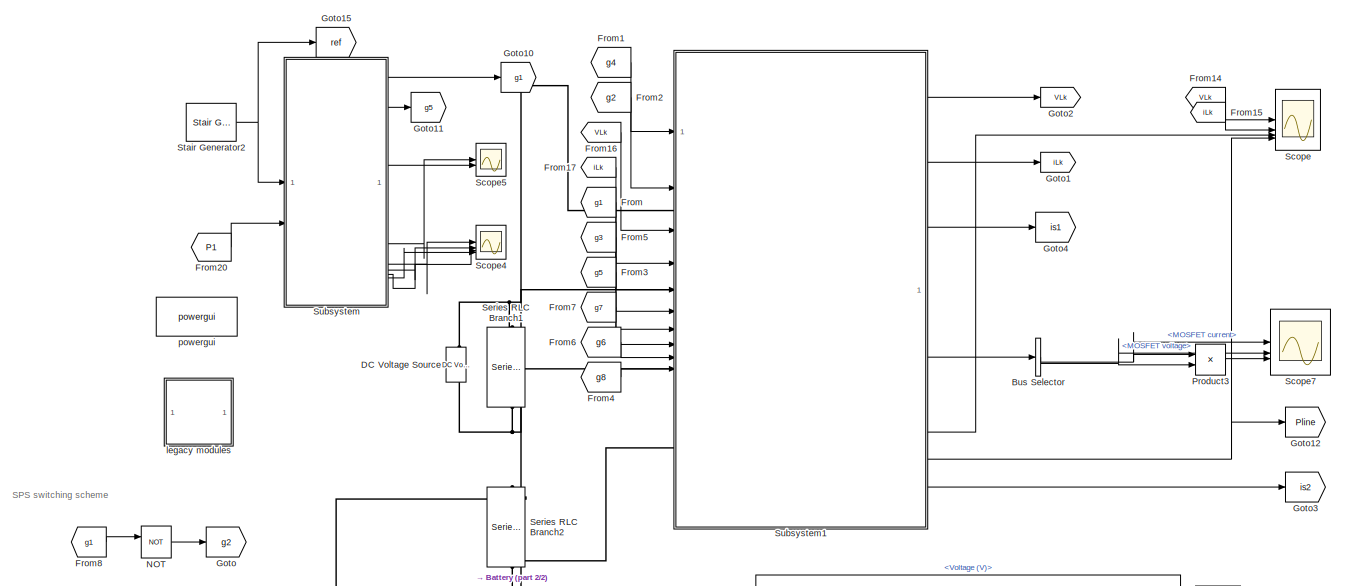
[diagram: root canvas - part 1/2, full width, top band]
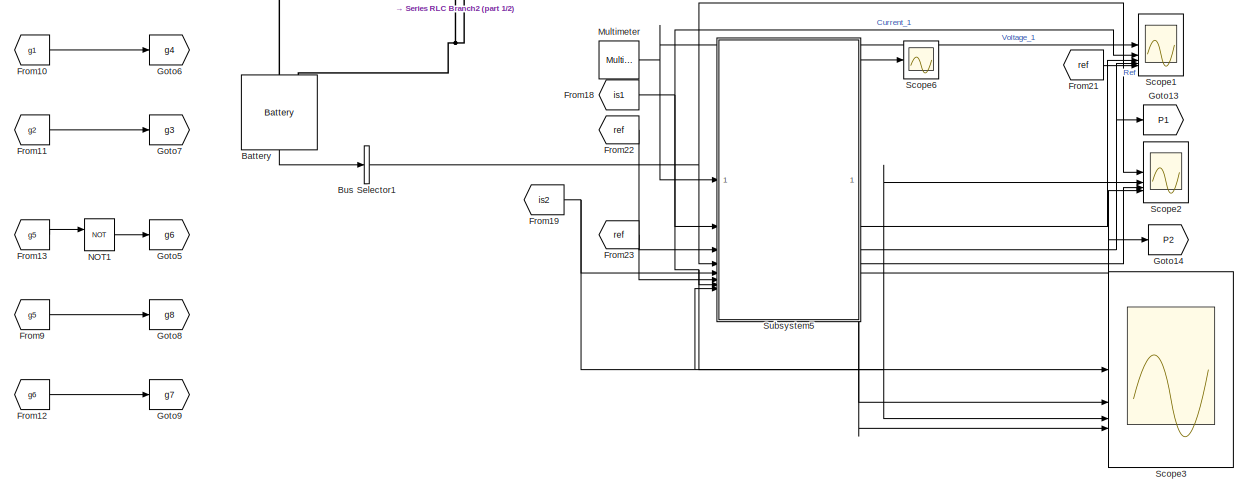
[diagram: root canvas - part 2/2, full width, bottom band]
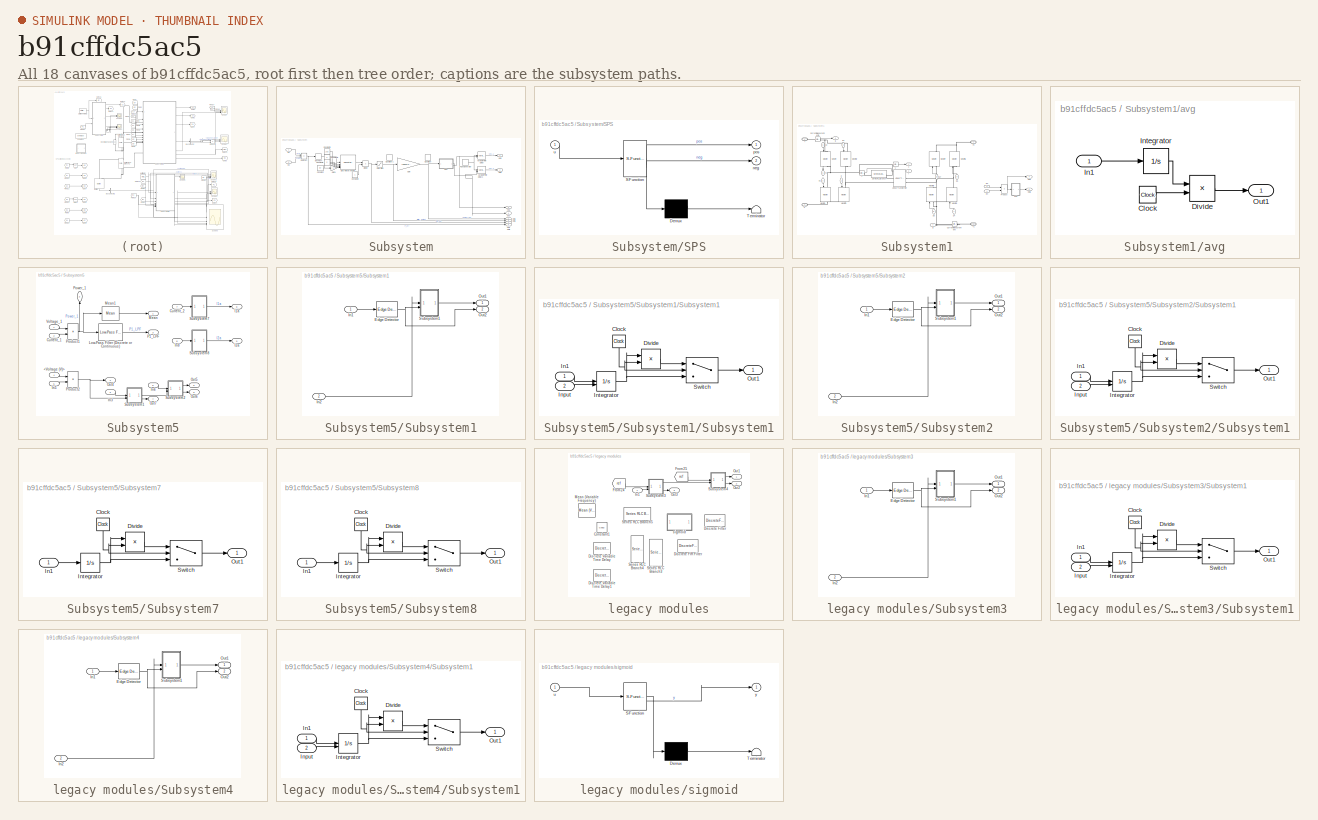
[diagram: thumbnail index - all 18 canvases of the model, root first then tree order]
MODEL slx_b91cffdc5ac5
KIND model
CONFIG AbsTol = auto
CONFIG EnableMultiTasking = off
CONFIG FixedStep = auto
CONFIG MaxStep = auto
CONFIG MinStep = auto
CONFIG RelTol = 1e-3
CONFIG SampleTimeConstraint = Unconstrained
CONFIG SolverName = VariableStepAuto
CONFIG StartTime = 0.0
CONFIG StopTime = 50e-2
BLOCK [Reference] Battery  REF=spsBatteryLib/Battery
  LibrarySourceBlock = sps_lib/Sources/Battery
  NameLocation = right
  SourceBlock = spsBatteryLib/Battery
  SourceType = Battery
BLOCK [BusSelector] Bus Selector
  OutputSignals = MOSFET current,MOSFET voltage
BLOCK [BusSelector] Bus Selector1
  OutputSignals = Voltage (V)
BLOCK [Reference] DC Voltage Source  REF=spsDCVoltageSourceLib/DC Voltage Source
  LibrarySourceBlock = sps_lib/Sources/DC Voltage Source
  SourceBlock = spsDCVoltageSourceLib/DC Voltage Source
  SourceType = DC Voltage Source
BLOCK [From] From
  GotoTag = g1
BLOCK [From] From1
  GotoTag = g4
BLOCK [From] From10
  GotoTag = g1
BLOCK [From] From11
  GotoTag = g2
BLOCK [From] From12
  GotoTag = g6
BLOCK [From] From13
  GotoTag = g5
BLOCK [From] From14
  GotoTag = VLk
BLOCK [From] From15
  GotoTag = iLk
BLOCK [From] From16
  GotoTag = VLk
BLOCK [From] From17
  GotoTag = iLk
BLOCK [From] From18
  GotoTag = is1
BLOCK [From] From19
  GotoTag = is2
BLOCK [From] From2
  GotoTag = g2
BLOCK [From] From20
  GotoTag = P1
BLOCK [From] From21
  GotoTag = ref
  NameLocation = top
BLOCK [From] From22
  GotoTag = ref
BLOCK [From] From23
  GotoTag = ref
BLOCK [From] From3
  GotoTag = g5
BLOCK [From] From4
  GotoTag = g8
BLOCK [From] From5
  GotoTag = g3
BLOCK [From] From6
  GotoTag = g6
BLOCK [From] From7
  GotoTag = g7
BLOCK [From] From8
  GotoTag = g1
BLOCK [From] From9
  GotoTag = g5
BLOCK [Goto] Goto
  GotoTag = g2
BLOCK [Goto] Goto1
  GotoTag = iLk
BLOCK [Goto] Goto10
  GotoTag = g1
BLOCK [Goto] Goto11
  GotoTag = g5
BLOCK [Goto] Goto12
  GotoTag = Pline
BLOCK [Goto] Goto13
  GotoTag = P1
  NameLocation = top
BLOCK [Goto] Goto14
  GotoTag = P2
BLOCK [Goto] Goto15
  GotoTag = ref
BLOCK [Goto] Goto2
  GotoTag = VLk
BLOCK [Goto] Goto3
  GotoTag = is2
BLOCK [Goto] Goto4
  GotoTag = is1
BLOCK [Goto] Goto5
  GotoTag = g6
BLOCK [Goto] Goto6
  GotoTag = g4
BLOCK [Goto] Goto7
  GotoTag = g3
BLOCK [Goto] Goto8
  GotoTag = g8
BLOCK [Goto] Goto9
  GotoTag = g7
BLOCK [Reference] Multimeter  REF=spsMultimeterLib/Multimeter
  LibrarySourceBlock = sps_lib/Sensors and Measurements/Multimeter
  SourceBlock = spsMultimeterLib/Multimeter
  SourceType = Multimeter
BLOCK [Logic] NOT
  AllPortsSameDT = off
  IconShape = distinctive
  Operator = NOT
  OutDataTypeStr = boolean
BLOCK [Logic] NOT1
  AllPortsSameDT = off
  IconShape = distinctive
  Operator = NOT
  OutDataTypeStr = boolean
BLOCK [Product] Product3
  NameLocation = top
BLOCK [Scope] Scope
  Floating = off
  NumInputPorts = 4
  ScopeSpecificationString = Simulink.scopes.TimeScopeBlockCfg('CurrentConfiguration', extmgr.ConfigurationSet(extmgr.Configuration('Core','General UI',true),extmgr.Configuration('Core','Source UI',true),extmgr.Configuration('Sources','WiredSimulink',true),extmgr.Configuration('Visuals','Time Domain',true,'SerializedDisplays',{struct('MinYLimReal','-380.0294','MaxYLimReal','368.88399','YLabelReal','','MinYLimMag',' 0.00000','...<+3384ch>
BLOCK [Scope] Scope1
  Floating = off
  NumInputPorts = 5
  ScopeSpecificationString = Simulink.scopes.TimeScopeBlockCfg('CurrentConfiguration', extmgr.ConfigurationSet(extmgr.Configuration('Core','General UI',true),extmgr.Configuration('Core','Source UI',true),extmgr.Configuration('Sources','WiredSimulink',true,'DataLoggingVariableName','ScopeData1'),extmgr.Configuration('Visuals','Time Domain',true,'SerializedDisplays',{struct('MinYLimReal','20.00000','MaxYLimReal','220.00000','YL...<+3509ch>
BLOCK [Scope] Scope2
  Floating = off
  NumInputPorts = 4
  ScopeSpecificationString = Simulink.scopes.TimeScopeBlockCfg('CurrentConfiguration', extmgr.ConfigurationSet(extmgr.Configuration('Core','General UI',true),extmgr.Configuration('Core','Source UI',true),extmgr.Configuration('Sources','WiredSimulink',true,'DataLoggingVariableName','ScopeData2'),extmgr.Configuration('Visuals','Time Domain',true,'SerializedDisplays',{struct('MinYLimReal','-4.87649','MaxYLimReal','125.16407','YL...<+3456ch>
BLOCK [Scope] Scope3
  Floating = off
  NumInputPorts = 4
  ScopeSpecificationString = Simulink.scopes.TimeScopeBlockCfg('CurrentConfiguration', extmgr.ConfigurationSet(extmgr.Configuration('Core','General UI',true),extmgr.Configuration('Core','Source UI',true),extmgr.Configuration('Sources','WiredSimulink',true,'DataLoggingVariableName','ScopeData1'),extmgr.Configuration('Visuals','Time Domain',true,'SerializedDisplays',{struct('MinYLimReal','-52.40124','MaxYLimReal','59.33411','YL...<+3498ch>
BLOCK [Scope] Scope4
  Floating = off
  NumInputPorts = 4
  ScopeSpecificationString = Simulink.scopes.TimeScopeBlockCfg('CurrentConfiguration', extmgr.ConfigurationSet(extmgr.Configuration('Core','General UI',true),extmgr.Configuration('Core','Source UI',true),extmgr.Configuration('Sources','WiredSimulink',true,'DataLoggingVariableName','ScopeData1'),extmgr.Configuration('Visuals','Time Domain',true,'SerializedDisplays',{struct('MinYLimReal','-0.000006','MaxYLimReal','0.000006','YL...<+3515ch>
BLOCK [Scope] Scope5
  Floating = off
  NumInputPorts = 2
  ScopeSpecificationString = Simulink.scopes.TimeScopeBlockCfg('CurrentConfiguration', extmgr.ConfigurationSet(extmgr.Configuration('Core','General UI',true),extmgr.Configuration('Core','Source UI',true),extmgr.Configuration('Sources','WiredSimulink',true,'DataLoggingVariableName','ScopeData1'),extmgr.Configuration('Visuals','Time Domain',true,'SerializedDisplays',{struct('MinYLimReal','-0.0000006','MaxYLimReal','0.0000056','...<+2093ch>
BLOCK [Scope] Scope6
  Floating = off
  NumInputPorts = 1
  ScopeSpecificationString = Simulink.scopes.TimeScopeBlockCfg('CurrentConfiguration', extmgr.ConfigurationSet(extmgr.Configuration('Core','General UI',true),extmgr.Configuration('Core','Source UI',true),extmgr.Configuration('Sources','WiredSimulink',true,'DataLoggingVariableName','ScopeData2'),extmgr.Configuration('Visuals','Time Domain',true,'SerializedDisplays',{struct('MinYLimReal','-3629.26667','MaxYLimReal','4138.18381'...<+1479ch>
BLOCK [Scope] Scope7
  Floating = off
  NameLocation = top
  NumInputPorts = 3
  ScopeSpecificationString = Simulink.scopes.TimeScopeBlockCfg('CurrentConfiguration', extmgr.ConfigurationSet(extmgr.Configuration('Core','General UI',true),extmgr.Configuration('Core','Source UI',true),extmgr.Configuration('Sources','WiredSimulink',true,'DataLoggingVariableName','ScopeData1'),extmgr.Configuration('Visuals','Time Domain',true,'SerializedDisplays',{struct('MinYLimReal','-56.54528','MaxYLimReal','71.19717','YL...<+2793ch>
BLOCK [Reference] Series RLC Branch1  REF=spsSeriesRLCBranchLib/Series RLC Branch
  LibrarySourceBlock = sps_lib/Passives/Series RLC Branch
  NameLocation = left
  SourceBlock = spsSeriesRLCBranchLib/Series RLC Branch
  SourceType = Series RLC Branch
BLOCK [Reference] Series RLC Branch2  REF=spsSeriesRLCBranchLib/Series RLC Branch
  LibrarySourceBlock = sps_lib/Passives/Series RLC Branch
  NameLocation = left
  SourceBlock = spsSeriesRLCBranchLib/Series RLC Branch
  SourceType = Series RLC Branch
BLOCK [Reference] Stair Generator2  REF=spsStairGeneratorLib/Stair
Generator
  LibrarySourceBlock = sps_lib/Sources/Signal Generator Sources/Stair\nGenerator
  SourceBlock = spsStairGeneratorLib/Stair\nGenerator
  SourceType = Stair Generator
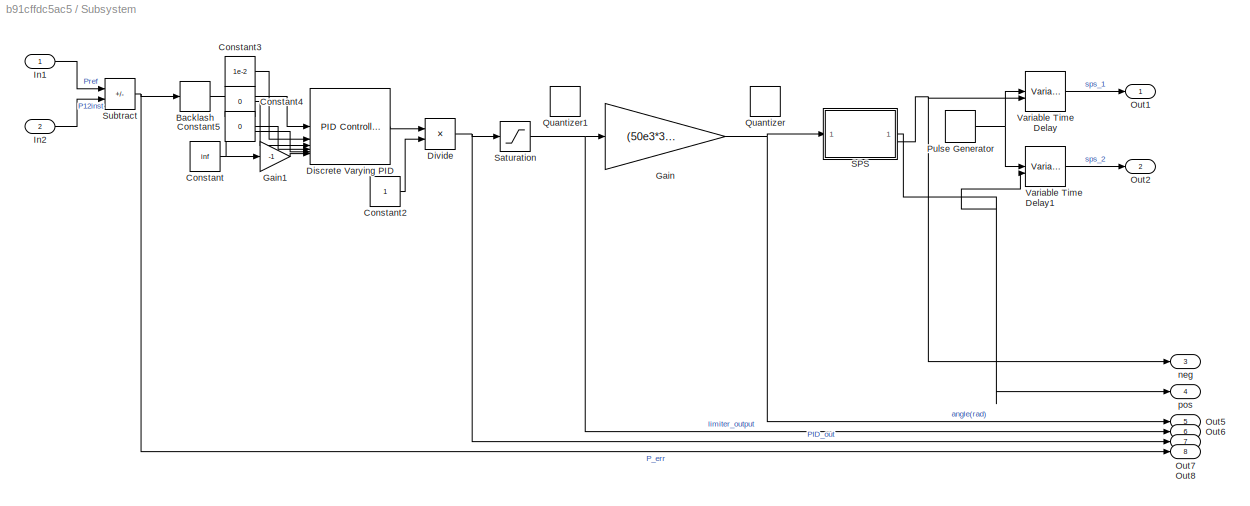
BLOCK [SubSystem] Subsystem
BLOCK [Backlash] Subsystem/Backlash
  BacklashWidth = 0
BLOCK [Constant] Subsystem/Constant
  Value = inf
BLOCK [Constant] Subsystem/Constant2
BLOCK [Constant] Subsystem/Constant3
  Value = 1e-2
BLOCK [Constant] Subsystem/Constant4
  Value = 0
BLOCK [Constant] Subsystem/Constant5
  Value = 0
BLOCK [Reference] Subsystem/Discrete Varying PID  REF=slpidlib/PID Controller
  LibrarySourceBlock = cstblocks/Linear Parameter Varying/Discrete Varying PID
  NameLocation = right
  SourceBlock = slpidlib/PID Controller
  SourceType = PID 1dof
BLOCK [Product] Subsystem/Divide
  Inputs = */
BLOCK [Gain] Subsystem/Gain
  Gain = (50e3*360/90)^-1
BLOCK [Gain] Subsystem/Gain1
  Gain = -1
BLOCK [Inport] Subsystem/In1
  IconDisplay = Port number and signal name
BLOCK [Inport] Subsystem/In2
  IconDisplay = Port number and signal name
  Port = 2
BLOCK [Outport] Subsystem/Out1
  IconDisplay = Port number and signal name
BLOCK [Outport] Subsystem/Out2
  IconDisplay = Port number and signal name
  Port = 2
BLOCK [Outport] Subsystem/Out5
  IconDisplay = Port number and signal name
  Port = 5
BLOCK [Outport] Subsystem/Out6
  IconDisplay = Port number and signal name
  Port = 6
BLOCK [Outport] Subsystem/Out7
  IconDisplay = Port number and signal name
  Port = 7
BLOCK [Outport] Subsystem/Out8
  IconDisplay = Port number and signal name
  Port = 8
BLOCK [DiscretePulseGenerator] Subsystem/Pulse Generator
  Period = 1/50e3
  PulseType = Time based
  PulseWidth = 50
BLOCK [Quantizer] Subsystem/Quantizer
  Commented = on
  QuantizationInterval = 1e-5
BLOCK [Quantizer] Subsystem/Quantizer1
  Commented = on
  QuantizationInterval = 1e-2
BLOCK [SubSystem] Subsystem/SPS
  ErrorFcn = Stateflow.Translate.translate
  LibrarySourceBlock = simulink/User-Defined\nFunctions/MATLAB Function
  PermitHierarchicalResolution = ExplicitOnly
  SFBlockType = MATLAB Function
  TreatAsAtomicUnit = on
BLOCK [Demux] Subsystem/SPS/ Demux 
  Outputs = 1
BLOCK [S-Function] Subsystem/SPS/ SFunction 
  EnableBusSupport = on
  FunctionName = sf_sfun
  PortCounts = [1 3]
  SFcnIsStateOwnerBlock = off
  SFunctionDeploymentMode = off
  Tag = Stateflow S-Function 1
BLOCK [Terminator] Subsystem/SPS/ Terminator 
BLOCK [Outport] Subsystem/SPS/neg
  Port = 2
BLOCK [Outport] Subsystem/SPS/pos
BLOCK [Inport] Subsystem/SPS/u
BLOCK [Saturate] Subsystem/Saturation
  LowerLimit = -1
  UpperLimit = 1
BLOCK [Sum] Subsystem/Subtract
  IconShape = rectangular
  Inputs = +-
BLOCK [VariableTransportDelay] Subsystem/Variable Time Delay
  MaximumDelay = 10
BLOCK [VariableTransportDelay] Subsystem/Variable Time Delay1
  MaximumDelay = 10
BLOCK [Outport] Subsystem/neg
  Port = 3
BLOCK [Outport] Subsystem/pos
  Port = 4
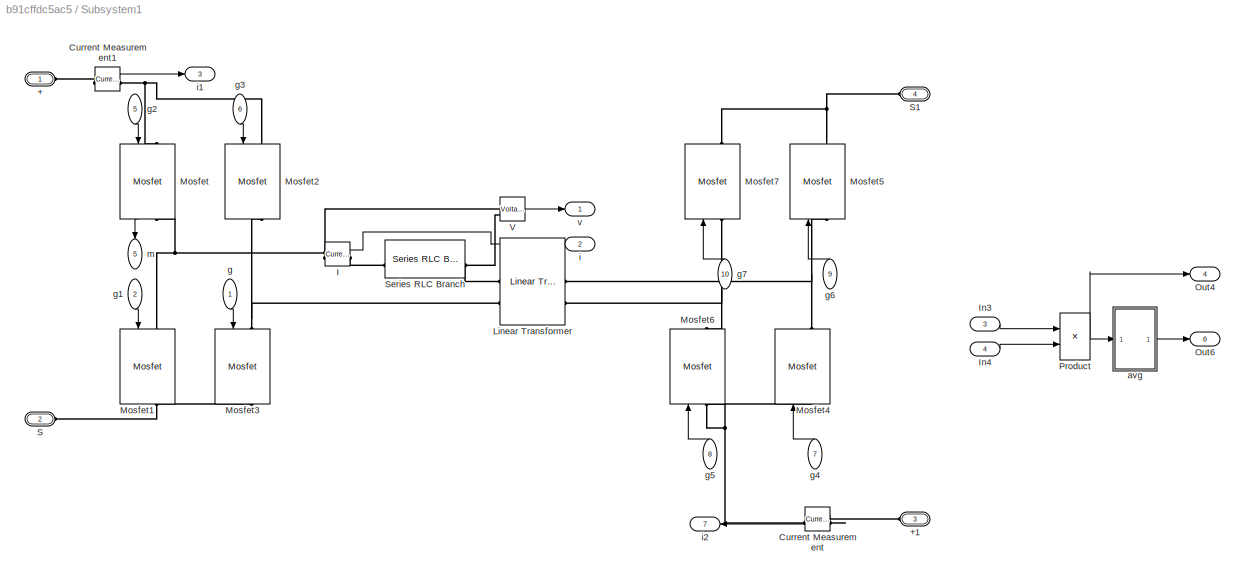
BLOCK [SubSystem] Subsystem1
BLOCK [PMIOPort] Subsystem1/+
  Side = Left
BLOCK [PMIOPort] Subsystem1/+1
  NameLocation = top
  Port = 3
  Side = Left
BLOCK [Reference] Subsystem1/Current Measurement  REF=spsCurrentMeasurementLib/Current Measurement
  LibrarySourceBlock = sps_lib/Sensors and Measurements/Current Measurement
  NameLocation = top
  SourceBlock = spsCurrentMeasurementLib/Current Measurement
  SourceType = Current Measurement
  UserDataPersistent = on
BLOCK [Reference] Subsystem1/Current Measurement1  REF=spsCurrentMeasurementLib/Current Measurement
  LibrarySourceBlock = sps_lib/Sensors and Measurements/Current Measurement
  SourceBlock = spsCurrentMeasurementLib/Current Measurement
  SourceType = Current Measurement
  UserDataPersistent = on
BLOCK [Reference] Subsystem1/I  REF=spsCurrentMeasurementLib/Current Measurement
  LibrarySourceBlock = sps_lib/Sensors and Measurements/Current Measurement
  SourceBlock = spsCurrentMeasurementLib/Current Measurement
  SourceType = Current Measurement
  UserDataPersistent = on
BLOCK [Inport] Subsystem1/In3
  Port = 3
BLOCK [Inport] Subsystem1/In4
  Port = 4
BLOCK [Reference] Subsystem1/Linear Transformer  REF=spsLinearTransformerLib/Linear Transformer
  LibrarySourceBlock = sps_lib/Power Grid Elements/Linear Transformer
  SourceBlock = spsLinearTransformerLib/Linear Transformer
  SourceType = Linear Transformer
BLOCK [Reference] Subsystem1/Mosfet  REF=spsMosfetLib/Mosfet
  LibrarySourceBlock = sps_lib/Power Electronics/Mosfet
  NameLocation = left
  SourceBlock = spsMosfetLib/Mosfet
  SourceType = Mosfet
BLOCK [Reference] Subsystem1/Mosfet1  REF=spsMosfetLib/Mosfet
  LibrarySourceBlock = sps_lib/Power Electronics/Mosfet
  NameLocation = left
  SourceBlock = spsMosfetLib/Mosfet
  SourceType = Mosfet
BLOCK [Reference] Subsystem1/Mosfet2  REF=spsMosfetLib/Mosfet
  LibrarySourceBlock = sps_lib/Power Electronics/Mosfet
  NameLocation = left
  SourceBlock = spsMosfetLib/Mosfet
  SourceType = Mosfet
BLOCK [Reference] Subsystem1/Mosfet3  REF=spsMosfetLib/Mosfet
  LibrarySourceBlock = sps_lib/Power Electronics/Mosfet
  NameLocation = left
  SourceBlock = spsMosfetLib/Mosfet
  SourceType = Mosfet
BLOCK [Reference] Subsystem1/Mosfet4  REF=spsMosfetLib/Mosfet
  LibrarySourceBlock = sps_lib/Power Electronics/Mosfet
  NameLocation = right
  SourceBlock = spsMosfetLib/Mosfet
  SourceType = Mosfet
BLOCK [Reference] Subsystem1/Mosfet5  REF=spsMosfetLib/Mosfet
  LibrarySourceBlock = sps_lib/Power Electronics/Mosfet
  NameLocation = right
  SourceBlock = spsMosfetLib/Mosfet
  SourceType = Mosfet
BLOCK [Reference] Subsystem1/Mosfet6  REF=spsMosfetLib/Mosfet
  LibrarySourceBlock = sps_lib/Power Electronics/Mosfet
  NameLocation = right
  SourceBlock = spsMosfetLib/Mosfet
  SourceType = Mosfet
BLOCK [Reference] Subsystem1/Mosfet7  REF=spsMosfetLib/Mosfet
  LibrarySourceBlock = sps_lib/Power Electronics/Mosfet
  NameLocation = right
  SourceBlock = spsMosfetLib/Mosfet
  SourceType = Mosfet
BLOCK [Outport] Subsystem1/Out4
  Port = 4
BLOCK [Outport] Subsystem1/Out6
  Port = 6
BLOCK [Product] Subsystem1/Product
BLOCK [PMIOPort] Subsystem1/S
  Port = 2
  Side = Left
BLOCK [PMIOPort] Subsystem1/S1
  NameLocation = top
  Port = 4
  Side = Left
BLOCK [Reference] Subsystem1/Series RLC Branch  REF=spsSeriesRLCBranchLib/Series RLC Branch
  LibrarySourceBlock = sps_lib/Passives/Series RLC Branch
  SourceBlock = spsSeriesRLCBranchLib/Series RLC Branch
  SourceType = Series RLC Branch
BLOCK [Reference] Subsystem1/V  REF=spsVoltageMeasurementLib/Voltage Measurement
  LibrarySourceBlock = sps_lib/Sensors and Measurements/Voltage Measurement
  SourceBlock = spsVoltageMeasurementLib/Voltage Measurement
  SourceType = Voltage Measurement
  UserDataPersistent = on
BLOCK [SubSystem] Subsystem1/avg
BLOCK [Clock] Subsystem1/avg/Clock
BLOCK [Product] Subsystem1/avg/Divide
  Inputs = */
BLOCK [Inport] Subsystem1/avg/In1
BLOCK [Integrator] Subsystem1/avg/Integrator
BLOCK [Outport] Subsystem1/avg/Out1
BLOCK [Inport] Subsystem1/g
  NameLocation = left
BLOCK [Inport] Subsystem1/g1
  NameLocation = left
  Port = 2
BLOCK [Inport] Subsystem1/g2
  NameLocation = left
  Port = 5
BLOCK [Inport] Subsystem1/g3
  NameLocation = left
  Port = 6
BLOCK [Inport] Subsystem1/g4
  NameLocation = right
  Port = 7
BLOCK [Inport] Subsystem1/g5
  NameLocation = right
  Port = 8
BLOCK [Inport] Subsystem1/g6
  NameLocation = right
  Port = 9
BLOCK [Inport] Subsystem1/g7
  NameLocation = right
  Port = 10
BLOCK [Outport] Subsystem1/i
  Port = 2
BLOCK [Outport] Subsystem1/i1
  Port = 3
BLOCK [Outport] Subsystem1/i2
  NameLocation = top
  Port = 7
BLOCK [Outport] Subsystem1/m
  NameLocation = right
  Port = 5
BLOCK [Outport] Subsystem1/v
BLOCK [SubSystem] Subsystem5
BLOCK [Inport] Subsystem5/<Voltage (V)>
  Port = 4
BLOCK [Inport] Subsystem5/Current_1
  Port = 2
BLOCK [Inport] Subsystem5/Current_2
  Port = 7
BLOCK [Outport] Subsystem5/I1a
  Port = 8
BLOCK [Outport] Subsystem5/I2a
  Port = 9
BLOCK [Inport] Subsystem5/In3
  Port = 3
BLOCK [Inport] Subsystem5/In5
  Port = 5
BLOCK [Inport] Subsystem5/In6
  Port = 6
BLOCK [Inport] Subsystem5/In8
  NameLocation = top
  Port = 8
BLOCK [Reference] Subsystem5/Low-Pass Filter (Discrete or Continuous)  REF=eeGeneralControl/Low-Pass Filter
(Discrete or Continuous)
  LibrarySourceBlock = ee_sl_lib/General Control/Low-Pass Filter\n(Discrete or Continuous)
  SourceBlock = eeGeneralControl/Low-Pass Filter\n(Discrete or Continuous)
  SourceType = Low-Pass Filter (Discrete or Continuous)
BLOCK [Outport] Subsystem5/Mean
BLOCK [Reference] Subsystem5/Mean1  REF=spsMeanLib/Mean
  LibrarySourceBlock = sps_lib/Sensors and Measurements/Mean
  SourceBlock = spsMeanLib/Mean
  SourceType = Mean
BLOCK [Outport] Subsystem5/Out4
  Port = 4
BLOCK [Outport] Subsystem5/Out5
  Port = 5
BLOCK [Outport] Subsystem5/Out6
  Port = 6
BLOCK [Outport] Subsystem5/Out7
  Port = 7
BLOCK [Outport] Subsystem5/P1_LPF
  Port = 3
BLOCK [Outport] Subsystem5/Power_1
  NameLocation = right
  Port = 2
BLOCK [Product] Subsystem5/Product1
BLOCK [Product] Subsystem5/Product2
BLOCK [SubSystem] Subsystem5/Subsystem1
BLOCK [Reference] Subsystem5/Subsystem1/Edge Detector  REF=spsEdgeDetectorLib/Edge Detector
  LibrarySourceBlock = sps_lib/Control/Edge Detector
  SourceBlock = spsEdgeDetectorLib/Edge Detector
  SourceType = Edge Detector
BLOCK [Inport] Subsystem5/Subsystem1/In1
BLOCK [Inport] Subsystem5/Subsystem1/In2
  Port = 2
BLOCK [Outport] Subsystem5/Subsystem1/Out1
BLOCK [Outport] Subsystem5/Subsystem1/Out2
  Port = 2
BLOCK [SubSystem] Subsystem5/Subsystem1/Subsystem1
BLOCK [Clock] Subsystem5/Subsystem1/Subsystem1/Clock
  NameLocation = left
BLOCK [Product] Subsystem5/Subsystem1/Subsystem1/Divide
  Inputs = */
  NameLocation = top
BLOCK [Inport] Subsystem5/Subsystem1/Subsystem1/In1
BLOCK [Inport] Subsystem5/Subsystem1/Subsystem1/Input
  Port = 2
BLOCK [Integrator] Subsystem5/Subsystem1/Subsystem1/Integrator
  ExternalReset = rising
  IgnoreLimit = on
  LimitOutput = on
BLOCK [Outport] Subsystem5/Subsystem1/Subsystem1/Out1
BLOCK [Switch] Subsystem5/Subsystem1/Subsystem1/Switch
  Criteria = u2 > Threshold
  InputSameDT = off
  SaturateOnIntegerOverflow = off
BLOCK [SubSystem] Subsystem5/Subsystem2
BLOCK [Reference] Subsystem5/Subsystem2/Edge Detector  REF=spsEdgeDetectorLib/Edge Detector
  LibrarySourceBlock = sps_lib/Control/Edge Detector
  SourceBlock = spsEdgeDetectorLib/Edge Detector
  SourceType = Edge Detector
BLOCK [Inport] Subsystem5/Subsystem2/In1
BLOCK [Inport] Subsystem5/Subsystem2/In2
  Port = 2
BLOCK [Outport] Subsystem5/Subsystem2/Out1
BLOCK [Outport] Subsystem5/Subsystem2/Out2
  Port = 2
BLOCK [SubSystem] Subsystem5/Subsystem2/Subsystem1
BLOCK [Clock] Subsystem5/Subsystem2/Subsystem1/Clock
  NameLocation = left
BLOCK [Product] Subsystem5/Subsystem2/Subsystem1/Divide
  Inputs = */
  NameLocation = top
BLOCK [Inport] Subsystem5/Subsystem2/Subsystem1/In1
BLOCK [Inport] Subsystem5/Subsystem2/Subsystem1/Input
  Port = 2
BLOCK [Integrator] Subsystem5/Subsystem2/Subsystem1/Integrator
  ExternalReset = rising
  IgnoreLimit = on
  LimitOutput = on
BLOCK [Outport] Subsystem5/Subsystem2/Subsystem1/Out1
BLOCK [Switch] Subsystem5/Subsystem2/Subsystem1/Switch
  Criteria = u2 > Threshold
  InputSameDT = off
  SaturateOnIntegerOverflow = off
BLOCK [SubSystem] Subsystem5/Subsystem7
BLOCK [Clock] Subsystem5/Subsystem7/Clock
  NameLocation = left
BLOCK [Product] Subsystem5/Subsystem7/Divide
  Inputs = */
  NameLocation = top
BLOCK [Inport] Subsystem5/Subsystem7/In1
BLOCK [Integrator] Subsystem5/Subsystem7/Integrator
BLOCK [Outport] Subsystem5/Subsystem7/Out1
BLOCK [Switch] Subsystem5/Subsystem7/Switch
  Criteria = u2 > Threshold
  InputSameDT = off
  SaturateOnIntegerOverflow = off
BLOCK [SubSystem] Subsystem5/Subsystem8
BLOCK [Clock] Subsystem5/Subsystem8/Clock
  NameLocation = left
BLOCK [Product] Subsystem5/Subsystem8/Divide
  Inputs = */
  NameLocation = top
BLOCK [Inport] Subsystem5/Subsystem8/In1
BLOCK [Integrator] Subsystem5/Subsystem8/Integrator
BLOCK [Outport] Subsystem5/Subsystem8/Out1
BLOCK [Switch] Subsystem5/Subsystem8/Switch
  Criteria = u2 > Threshold
  InputSameDT = off
  SaturateOnIntegerOverflow = off
BLOCK [Inport] Subsystem5/Voltage_1
BLOCK [SubSystem] legacy modules
  Commented = on
BLOCK [Constant] legacy modules/Constant1
  Commented = on
  Value = 0.5e3
BLOCK [DiscreteFir] legacy modules/Discrete FIR Filter
  Commented = on
  InputPortMap = u0
  OutputPortMap = o0
BLOCK [DiscreteFilter] legacy modules/Discrete Filter
  Commented = on
  InputPortMap = u0
BLOCK [Reference] legacy modules/Discrete Variable Time Delay  REF=spsDiscreteVariableTimeDelayLib/Discrete Variable
Time Delay
  Commented = on
  LibrarySourceBlock = sps_lib/Control/Discrete Variable\nTime Delay
  SourceBlock = spsDiscreteVariableTimeDelayLib/Discrete Variable\nTime Delay
  SourceType = Discrete Variable Time Delay
BLOCK [Reference] legacy modules/Discrete Variable Time Delay1  REF=spsDiscreteVariableTimeDelayLib/Discrete Variable
Time Delay
  Commented = on
  LibrarySourceBlock = sps_lib/Control/Discrete Variable\nTime Delay
  SourceBlock = spsDiscreteVariableTimeDelayLib/Discrete Variable\nTime Delay
  SourceType = Discrete Variable Time Delay
BLOCK [From] legacy modules/From24
  Commented = on
  GotoTag = ref
BLOCK [From] legacy modules/From25
  Commented = on
  GotoTag = ref
BLOCK [Inport] legacy modules/In1
BLOCK [Reference] legacy modules/Mean (Variable Frequency)  REF=spsMeanVariableFrequencyLib/Mean
(Variable Frequency)
  Commented = on
  LibrarySourceBlock = sps_lib/Sensors and Measurements/Mean\n(Variable Frequency)
  SourceBlock = spsMeanVariableFrequencyLib/Mean\n(Variable Frequency)
  SourceType = Mean (Variable Frequency)
BLOCK [Outport] legacy modules/Out1
BLOCK [Outport] legacy modules/Out2
  Port = 2
BLOCK [Outport] legacy modules/Out3
  Port = 3
BLOCK [Reference] legacy modules/Series RLC Branch3  REF=spsSeriesRLCBranchLib/Series RLC Branch
  Commented = on
  LibrarySourceBlock = sps_lib/Passives/Series RLC Branch
  NameLocation = left
  SourceBlock = spsSeriesRLCBranchLib/Series RLC Branch
  SourceType = Series RLC Branch
BLOCK [Reference] legacy modules/Series RLC Branch4  REF=spsSeriesRLCBranchLib/Series RLC Branch
  Commented = on
  LibrarySourceBlock = sps_lib/Passives/Series RLC Branch
  NameLocation = left
  SourceBlock = spsSeriesRLCBranchLib/Series RLC Branch
  SourceType = Series RLC Branch
BLOCK [Reference] legacy modules/Series RLC Branch5  REF=spsSeriesRLCBranchLib/Series RLC Branch
  Commented = on
  LibrarySourceBlock = sps_lib/Passives/Series RLC Branch
  NameLocation = top
  SourceBlock = spsSeriesRLCBranchLib/Series RLC Branch
  SourceType = Series RLC Branch
BLOCK [SubSystem] legacy modules/Subsystem3
  Commented = on
BLOCK [Reference] legacy modules/Subsystem3/Edge Detector  REF=spsEdgeDetectorLib/Edge Detector
  LibrarySourceBlock = sps_lib/Control/Edge Detector
  SourceBlock = spsEdgeDetectorLib/Edge Detector
  SourceType = Edge Detector
BLOCK [Inport] legacy modules/Subsystem3/In1
BLOCK [Inport] legacy modules/Subsystem3/In2
  Port = 2
BLOCK [Outport] legacy modules/Subsystem3/Out1
BLOCK [Outport] legacy modules/Subsystem3/Out2
  Port = 2
BLOCK [SubSystem] legacy modules/Subsystem3/Subsystem1
BLOCK [Clock] legacy modules/Subsystem3/Subsystem1/Clock
  NameLocation = left
BLOCK [Product] legacy modules/Subsystem3/Subsystem1/Divide
  Inputs = */
  NameLocation = top
BLOCK [Inport] legacy modules/Subsystem3/Subsystem1/In1
BLOCK [Inport] legacy modules/Subsystem3/Subsystem1/Input
  Port = 2
BLOCK [Integrator] legacy modules/Subsystem3/Subsystem1/Integrator
  ExternalReset = rising
  IgnoreLimit = on
  LimitOutput = on
BLOCK [Outport] legacy modules/Subsystem3/Subsystem1/Out1
BLOCK [Switch] legacy modules/Subsystem3/Subsystem1/Switch
  Criteria = u2 > Threshold
  InputSameDT = off
  SaturateOnIntegerOverflow = off
BLOCK [SubSystem] legacy modules/Subsystem4
  Commented = on
BLOCK [Reference] legacy modules/Subsystem4/Edge Detector  REF=spsEdgeDetectorLib/Edge Detector
  LibrarySourceBlock = sps_lib/Control/Edge Detector
  SourceBlock = spsEdgeDetectorLib/Edge Detector
  SourceType = Edge Detector
BLOCK [Inport] legacy modules/Subsystem4/In1
BLOCK [Inport] legacy modules/Subsystem4/In2
  Port = 2
BLOCK [Outport] legacy modules/Subsystem4/Out1
BLOCK [Outport] legacy modules/Subsystem4/Out2
  Port = 2
BLOCK [SubSystem] legacy modules/Subsystem4/Subsystem1
BLOCK [Clock] legacy modules/Subsystem4/Subsystem1/Clock
  NameLocation = left
BLOCK [Product] legacy modules/Subsystem4/Subsystem1/Divide
  Inputs = */
  NameLocation = top
BLOCK [Inport] legacy modules/Subsystem4/Subsystem1/In1
BLOCK [Inport] legacy modules/Subsystem4/Subsystem1/Input
  Port = 2
BLOCK [Integrator] legacy modules/Subsystem4/Subsystem1/Integrator
  ExternalReset = rising
  IgnoreLimit = on
  LimitOutput = on
BLOCK [Outport] legacy modules/Subsystem4/Subsystem1/Out1
BLOCK [Switch] legacy modules/Subsystem4/Subsystem1/Switch
  Criteria = u2 > Threshold
  InputSameDT = off
  SaturateOnIntegerOverflow = off
BLOCK [SubSystem] legacy modules/sigmoid
  Commented = on
  ErrorFcn = Stateflow.Translate.translate
  LibrarySourceBlock = simulink/User-Defined\nFunctions/MATLAB Function
  PermitHierarchicalResolution = ExplicitOnly
  SFBlockType = MATLAB Function
  TreatAsAtomicUnit = on
BLOCK [Demux] legacy modules/sigmoid/ Demux 
  Outputs = 1
BLOCK [S-Function] legacy modules/sigmoid/ SFunction 
  EnableBusSupport = on
  FunctionName = sf_sfun
  PortCounts = [1 2]
  SFcnIsStateOwnerBlock = off
  SFunctionDeploymentMode = off
  Tag = Stateflow S-Function 2
BLOCK [Terminator] legacy modules/sigmoid/ Terminator 
BLOCK [Inport] legacy modules/sigmoid/u
BLOCK [Outport] legacy modules/sigmoid/y
BLOCK [Reference] powergui  REF=spspowerguiLib/powergui
  Priority = 1
  SourceBlock = spspowerguiLib/powergui
  SourceType = PSB option menu block
ANNOTATION (root): SPS switching scheme
LINE Battery:1 -> Bus Selector1:1
NET Bus Selector1:1 -> Scope2:1, Subsystem5:4
NET Bus Selector:1 -> Product3:1, Scope7:1
NET Bus Selector:2 -> Product3:2, Scope7:2
LINE From10:1 -> Goto6:1
LINE From11:1 -> Goto7:1
LINE From12:1 -> Goto9:1
LINE From13:1 -> NOT1:1
LINE From14:1 -> Scope:1
LINE From15:1 -> Scope:2
LINE From16:1 -> Subsystem1:3
LINE From17:1 -> Subsystem1:4
NET From18:1 -> Scope1:2, Scope3:1, Subsystem5:2, Subsystem5:7
NET From19:1 -> Scope2:2, Scope3:3, Subsystem5:5, Subsystem5:8
LINE From1:1 -> Subsystem1:1
LINE From20:1 -> Subsystem:2
LINE From21:1 -> Scope1:5
LINE From22:1 -> Subsystem5:3
LINE From23:1 -> Subsystem5:6
LINE From2:1 -> Subsystem1:2
LINE From3:1 -> Subsystem1:7
LINE From4:1 -> Subsystem1:10
LINE From5:1 -> Subsystem1:6
LINE From6:1 -> Subsystem1:9
LINE From7:1 -> Subsystem1:8
LINE From8:1 -> NOT:1
LINE From9:1 -> Goto8:1
LINE From:1 -> Subsystem1:5
NET Multimeter:1 -> Scope1:1, Subsystem5:1
LINE NOT1:1 -> Goto5:1
LINE NOT:1 -> Goto:1
LINE Product3:1 -> Scope7:3
NET Stair Generator2:1 -> Goto15:1, Subsystem:1
LINE Subsystem/Backlash:1 -> Subsystem/Discrete Varying PID:1
LINE Subsystem/Constant2:1 -> Subsystem/Divide:2
LINE Subsystem/Constant3:1 -> Subsystem/Discrete Varying PID:2
LINE Subsystem/Constant4:1 -> Subsystem/Discrete Varying PID:3
LINE Subsystem/Constant5:1 -> Subsystem/Discrete Varying PID:4
NET Subsystem/Constant:1 -> Subsystem/Discrete Varying PID:5, Subsystem/Gain1:1
LINE Subsystem/Discrete Varying PID:1 -> Subsystem/Divide:1
NET Subsystem/Divide:1 -> Subsystem/Out7:1, Subsystem/Saturation:1
LINE Subsystem/Gain1:1 -> Subsystem/Discrete Varying PID:6
NET Subsystem/Gain:1 -> Subsystem/Out5:1, Subsystem/SPS:1
LINE Subsystem/In1:1 -> Subsystem/Subtract:1
LINE Subsystem/In2:1 -> Subsystem/Subtract:2
NET Subsystem/Pulse Generator:1 -> Subsystem/Variable Time Delay1:1, Subsystem/Variable Time Delay:1
NET Subsystem/SPS:1 -> Subsystem/Variable Time Delay1:2, Subsystem/pos:1
NET Subsystem/SPS:2 -> Subsystem/Variable Time Delay:2, Subsystem/neg:1
NET Subsystem/Saturation:1 -> Subsystem/Gain:1, Subsystem/Out6:1
NET Subsystem/Subtract:1 -> Subsystem/Backlash:1, Subsystem/Out8:1
LINE Subsystem/Variable Time Delay1:1 -> Subsystem/Out2:1
LINE Subsystem/Variable Time Delay:1 -> Subsystem/Out1:1
LINE Subsystem1/Current Measurement1:1 -> Subsystem1/i1:1
LINE Subsystem1/Current Measurement:1 -> Subsystem1/i2:1
LINE Subsystem1/I:1 -> Subsystem1/i:1
LINE Subsystem1/In3:1 -> Subsystem1/Product:1
LINE Subsystem1/In4:1 -> Subsystem1/Product:2
LINE Subsystem1/Mosfet:1 -> Subsystem1/m:1
NET Subsystem1/Product:1 -> Subsystem1/Out4:1, Subsystem1/avg:1
LINE Subsystem1/V:1 -> Subsystem1/v:1
LINE Subsystem1/avg/Clock:1 -> Subsystem1/avg/Divide:2
LINE Subsystem1/avg/Divide:1 -> Subsystem1/avg/Out1:1
LINE Subsystem1/avg/In1:1 -> Subsystem1/avg/Integrator:1
LINE Subsystem1/avg/Integrator:1 -> Subsystem1/avg/Divide:1
LINE Subsystem1/avg:1 -> Subsystem1/Out6:1
LINE Subsystem1/g1:1 -> Subsystem1/Mosfet1:1
LINE Subsystem1/g2:1 -> Subsystem1/Mosfet:1
LINE Subsystem1/g3:1 -> Subsystem1/Mosfet2:1
LINE Subsystem1/g4:1 -> Subsystem1/Mosfet4:1
LINE Subsystem1/g5:1 -> Subsystem1/Mosfet6:1
LINE Subsystem1/g6:1 -> Subsystem1/Mosfet5:1
LINE Subsystem1/g7:1 -> Subsystem1/Mosfet7:1
LINE Subsystem1/g:1 -> Subsystem1/Mosfet3:1
LINE Subsystem1:1 -> Goto2:1
LINE Subsystem1:2 -> Goto1:1
LINE Subsystem1:3 -> Goto4:1
LINE Subsystem1:4 -> Scope:3
LINE Subsystem1:5 -> Bus Selector:1
NET Subsystem1:6 -> Goto12:1, Scope:4
LINE Subsystem1:7 -> Goto3:1
LINE Subsystem5/<Voltage (V)>:1 -> Subsystem5/Product2:1
LINE Subsystem5/Current_1:1 -> Subsystem5/Product1:2
LINE Subsystem5/Current_2:1 -> Subsystem5/Subsystem7:1
LINE Subsystem5/In3:1 -> Subsystem5/Subsystem1:1
LINE Subsystem5/In5:1 -> Subsystem5/Product2:2
LINE Subsystem5/In6:1 -> Subsystem5/Subsystem2:1
LINE Subsystem5/In8:1 -> Subsystem5/Subsystem8:1
LINE Subsystem5/Low-Pass Filter (Discrete or Continuous):1 -> Subsystem5/P1_LPF:1
LINE Subsystem5/Mean1:1 -> Subsystem5/Mean:1
NET Subsystem5/Product1:1 -> Subsystem5/Low-Pass Filter (Discrete or Continuous):1, Subsystem5/Mean1:1, Subsystem5/Power_1:1
NET Subsystem5/Product2:1 -> Subsystem5/Out4:1, Subsystem5/Subsystem1:2
NET Subsystem5/Subsystem1/Edge Detector:1 -> Subsystem5/Subsystem1/Out2:1, Subsystem5/Subsystem1/Subsystem1:2
LINE Subsystem5/Subsystem1/In1:1 -> Subsystem5/Subsystem1/Edge Detector:1
LINE Subsystem5/Subsystem1/In2:1 -> Subsystem5/Subsystem1/Subsystem1:1
NET Subsystem5/Subsystem1/Subsystem1/Clock:1 -> Subsystem5/Subsystem1/Subsystem1/Divide:2, Subsystem5/Subsystem1/Subsystem1/Switch:2
LINE Subsystem5/Subsystem1/Subsystem1/Divide:1 -> Subsystem5/Subsystem1/Subsystem1/Switch:1
LINE Subsystem5/Subsystem1/Subsystem1/In1:1 -> Subsystem5/Subsystem1/Subsystem1/Integrator:1
LINE Subsystem5/Subsystem1/Subsystem1/Input:1 -> Subsystem5/Subsystem1/Subsystem1/Integrator:2
NET Subsystem5/Subsystem1/Subsystem1/Integrator:1 -> Subsystem5/Subsystem1/Subsystem1/Divide:1, Subsystem5/Subsystem1/Subsystem1/Switch:3
LINE Subsystem5/Subsystem1/Subsystem1/Switch:1 -> Subsystem5/Subsystem1/Subsystem1/Out1:1
LINE Subsystem5/Subsystem1/Subsystem1:1 -> Subsystem5/Subsystem1/Out1:1
LINE Subsystem5/Subsystem1:1 -> Subsystem5/Subsystem2:2
LINE Subsystem5/Subsystem1:2 -> Subsystem5/Out7:1
NET Subsystem5/Subsystem2/Edge Detector:1 -> Subsystem5/Subsystem2/Out2:1, Subsystem5/Subsystem2/Subsystem1:2
LINE Subsystem5/Subsystem2/In1:1 -> Subsystem5/Subsystem2/Edge Detector:1
LINE Subsystem5/Subsystem2/In2:1 -> Subsystem5/Subsystem2/Subsystem1:1
NET Subsystem5/Subsystem2/Subsystem1/Clock:1 -> Subsystem5/Subsystem2/Subsystem1/Divide:2, Subsystem5/Subsystem2/Subsystem1/Switch:2
LINE Subsystem5/Subsystem2/Subsystem1/Divide:1 -> Subsystem5/Subsystem2/Subsystem1/Switch:1
LINE Subsystem5/Subsystem2/Subsystem1/In1:1 -> Subsystem5/Subsystem2/Subsystem1/Integrator:1
LINE Subsystem5/Subsystem2/Subsystem1/Input:1 -> Subsystem5/Subsystem2/Subsystem1/Integrator:2
NET Subsystem5/Subsystem2/Subsystem1/Integrator:1 -> Subsystem5/Subsystem2/Subsystem1/Divide:1, Subsystem5/Subsystem2/Subsystem1/Switch:3
LINE Subsystem5/Subsystem2/Subsystem1/Switch:1 -> Subsystem5/Subsystem2/Subsystem1/Out1:1
LINE Subsystem5/Subsystem2/Subsystem1:1 -> Subsystem5/Subsystem2/Out1:1
LINE Subsystem5/Subsystem2:1 -> Subsystem5/Out5:1
LINE Subsystem5/Subsystem2:2 -> Subsystem5/Out6:1
NET Subsystem5/Subsystem7/Clock:1 -> Subsystem5/Subsystem7/Divide:2, Subsystem5/Subsystem7/Switch:2
LINE Subsystem5/Subsystem7/Divide:1 -> Subsystem5/Subsystem7/Switch:1
LINE Subsystem5/Subsystem7/In1:1 -> Subsystem5/Subsystem7/Integrator:1
NET Subsystem5/Subsystem7/Integrator:1 -> Subsystem5/Subsystem7/Divide:1, Subsystem5/Subsystem7/Switch:3
LINE Subsystem5/Subsystem7/Switch:1 -> Subsystem5/Subsystem7/Out1:1
LINE Subsystem5/Subsystem7:1 -> Subsystem5/I1a:1
NET Subsystem5/Subsystem8/Clock:1 -> Subsystem5/Subsystem8/Divide:2, Subsystem5/Subsystem8/Switch:2
LINE Subsystem5/Subsystem8/Divide:1 -> Subsystem5/Subsystem8/Switch:1
LINE Subsystem5/Subsystem8/In1:1 -> Subsystem5/Subsystem8/Integrator:1
NET Subsystem5/Subsystem8/Integrator:1 -> Subsystem5/Subsystem8/Divide:1, Subsystem5/Subsystem8/Switch:3
LINE Subsystem5/Subsystem8/Switch:1 -> Subsystem5/Subsystem8/Out1:1
LINE Subsystem5/Subsystem8:1 -> Subsystem5/I2a:1
LINE Subsystem5/Voltage_1:1 -> Subsystem5/Product1:1
LINE Subsystem5:1 -> Scope6:1
LINE Subsystem5:2 -> Scope1:3
NET Subsystem5:3 -> Goto13:1, Scope1:4
LINE Subsystem5:4 -> Scope2:3
NET Subsystem5:5 -> Goto14:1, Scope2:4
LINE Subsystem5:8 -> Scope3:2
LINE Subsystem5:9 -> Scope3:4
LINE Subsystem:1 -> Goto10:1
LINE Subsystem:2 -> Goto11:1
LINE Subsystem:3 -> Scope5:1
LINE Subsystem:4 -> Scope5:2
LINE Subsystem:5 -> Scope4:1
LINE Subsystem:6 -> Scope4:2
LINE Subsystem:7 -> Scope4:3
LINE Subsystem:8 -> Scope4:4
LINE legacy modules/From24:1 -> legacy modules/Subsystem3:1
LINE legacy modules/From25:1 -> legacy modules/Subsystem4:1
LINE legacy modules/In1:1 -> legacy modules/Subsystem3:2
NET legacy modules/Subsystem3/Edge Detector:1 -> legacy modules/Subsystem3/Out2:1, legacy modules/Subsystem3/Subsystem1:2
LINE legacy modules/Subsystem3/In1:1 -> legacy modules/Subsystem3/Edge Detector:1
LINE legacy modules/Subsystem3/In2:1 -> legacy modules/Subsystem3/Subsystem1:1
NET legacy modules/Subsystem3/Subsystem1/Clock:1 -> legacy modules/Subsystem3/Subsystem1/Divide:2, legacy modules/Subsystem3/Subsystem1/Switch:2
LINE legacy modules/Subsystem3/Subsystem1/Divide:1 -> legacy modules/Subsystem3/Subsystem1/Switch:1
LINE legacy modules/Subsystem3/Subsystem1/In1:1 -> legacy modules/Subsystem3/Subsystem1/Integrator:1
LINE legacy modules/Subsystem3/Subsystem1/Input:1 -> legacy modules/Subsystem3/Subsystem1/Integrator:2
NET legacy modules/Subsystem3/Subsystem1/Integrator:1 -> legacy modules/Subsystem3/Subsystem1/Divide:1, legacy modules/Subsystem3/Subsystem1/Switch:3
LINE legacy modules/Subsystem3/Subsystem1/Switch:1 -> legacy modules/Subsystem3/Subsystem1/Out1:1
LINE legacy modules/Subsystem3/Subsystem1:1 -> legacy modules/Subsystem3/Out1:1
LINE legacy modules/Subsystem3:1 -> legacy modules/Subsystem4:2
LINE legacy modules/Subsystem3:2 -> legacy modules/Out3:1
NET legacy modules/Subsystem4/Edge Detector:1 -> legacy modules/Subsystem4/Out2:1, legacy modules/Subsystem4/Subsystem1:2
LINE legacy modules/Subsystem4/In1:1 -> legacy modules/Subsystem4/Edge Detector:1
LINE legacy modules/Subsystem4/In2:1 -> legacy modules/Subsystem4/Subsystem1:1
NET legacy modules/Subsystem4/Subsystem1/Clock:1 -> legacy modules/Subsystem4/Subsystem1/Divide:2, legacy modules/Subsystem4/Subsystem1/Switch:2
LINE legacy modules/Subsystem4/Subsystem1/Divide:1 -> legacy modules/Subsystem4/Subsystem1/Switch:1
LINE legacy modules/Subsystem4/Subsystem1/In1:1 -> legacy modules/Subsystem4/Subsystem1/Integrator:1
LINE legacy modules/Subsystem4/Subsystem1/Input:1 -> legacy modules/Subsystem4/Subsystem1/Integrator:2
NET legacy modules/Subsystem4/Subsystem1/Integrator:1 -> legacy modules/Subsystem4/Subsystem1/Divide:1, legacy modules/Subsystem4/Subsystem1/Switch:3
LINE legacy modules/Subsystem4/Subsystem1/Switch:1 -> legacy modules/Subsystem4/Subsystem1/Out1:1
LINE legacy modules/Subsystem4/Subsystem1:1 -> legacy modules/Subsystem4/Out1:1
LINE legacy modules/Subsystem4:1 -> legacy modules/Out1:1
LINE legacy modules/Subsystem4:2 -> legacy modules/Out2:1
PNET net1: Battery:LConn1 -- Series RLC Branch2:LConn1 -- Subsystem1:LConn3
PNET net2: Battery:LConn2 -- Series RLC Branch2:RConn1 -- Subsystem1:LConn4
PNET net3: DC Voltage Source:LConn1 -- Series RLC Branch1:RConn1 -- Subsystem1:LConn2
PNET net4: DC Voltage Source:RConn1 -- Series RLC Branch1:LConn1 -- Subsystem1:LConn1
PLINE Subsystem1/+1:RConn1 -- Subsystem1/Current Measurement:LConn1
PLINE Subsystem1/+:RConn1 -- Subsystem1/Current Measurement1:LConn1
PNET net5: Subsystem1/Current Measurement1:RConn1 -- Subsystem1/Mosfet2:LConn1 -- Subsystem1/Mosfet:LConn1
PNET net6: Subsystem1/Current Measurement:RConn1 -- Subsystem1/Mosfet4:LConn1 -- Subsystem1/Mosfet6:LConn1
PNET net7: Subsystem1/I:LConn1 -- Subsystem1/Mosfet1:LConn1 -- Subsystem1/Mosfet:RConn1 -- Subsystem1/V:LConn1
PLINE Subsystem1/I:RConn1 -- Subsystem1/Series RLC Branch:LConn1
PNET net8: Subsystem1/Linear Transformer:LConn1 -- Subsystem1/Series RLC Branch:RConn1 -- Subsystem1/V:LConn2
PNET net9: Subsystem1/Linear Transformer:LConn2 -- Subsystem1/Mosfet2:RConn1 -- Subsystem1/Mosfet3:LConn1
PNET net10: Subsystem1/Linear Transformer:RConn1 -- Subsystem1/Mosfet4:RConn1 -- Subsystem1/Mosfet5:LConn1
PNET net11: Subsystem1/Linear Transformer:RConn2 -- Subsystem1/Mosfet6:RConn1 -- Subsystem1/Mosfet7:LConn1
PNET net12: Subsystem1/Mosfet1:RConn1 -- Subsystem1/Mosfet3:RConn1 -- Subsystem1/S:RConn1
PNET net13: Subsystem1/Mosfet5:RConn1 -- Subsystem1/Mosfet7:RConn1 -- Subsystem1/S1:RConn1
note: NET lines group one-source signal fan-out (src -> all destinations, sorted); 1:1 wires keep LINE; PNET lines group multi-terminal physical nets as a canonical sorted terminal list (undirected conserving connections); 2-terminal nets keep the pairwise PLINE form
CHART legacy modules/sigmoid states=1 transitions=1
  STATE_LABEL 'eML_blk_kernel()'
  STATE_LABEL 'SCRIPT:\nfunction y = fcn(u)\n\ny = 1/(1 + exp(-u));\n'
CHART Subsystem/SPS states=1 transitions=1
  STATE_LABEL 'eML_blk_kernel()'
  STATE_LABEL 'SCRIPT:\nfunction [pos,neg] = fcn(u)\n\nif u>=0\n    pos = abs(u);\n    neg = 0;\nelse\n    neg = abs(u);\n    pos = 0;\nend\n'
CHART  states=0 transitions=0
CHART  states=0 transitions=0
